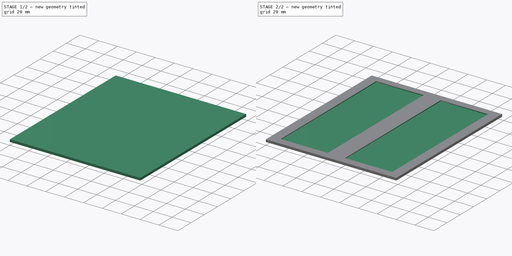
[diagram: build sequence overview — one tinted view per stage of 2, left to right]
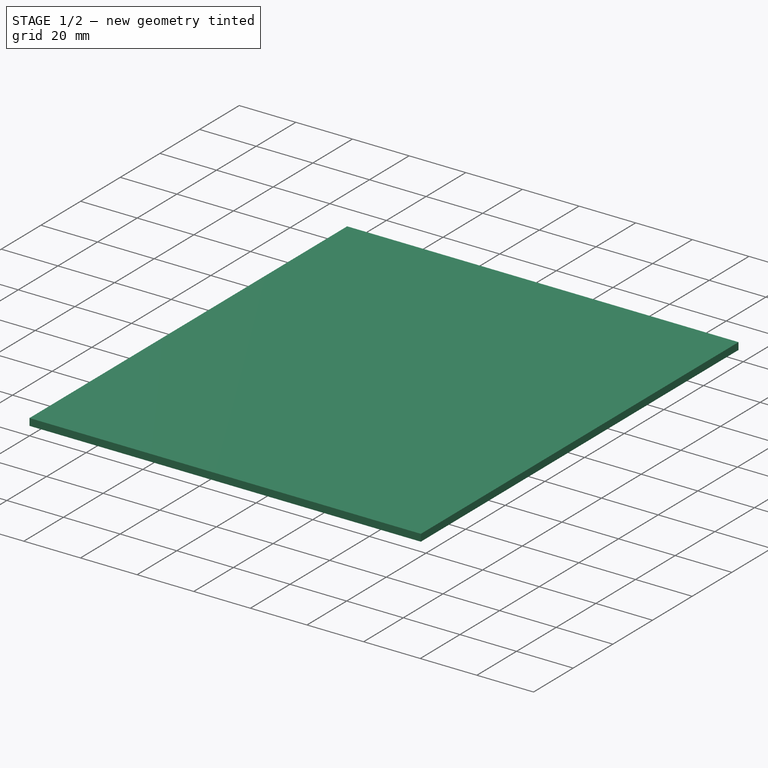
[diagram: stage 1 of 2 — iso view after this stage's code; geometry added in this stage tinted green]
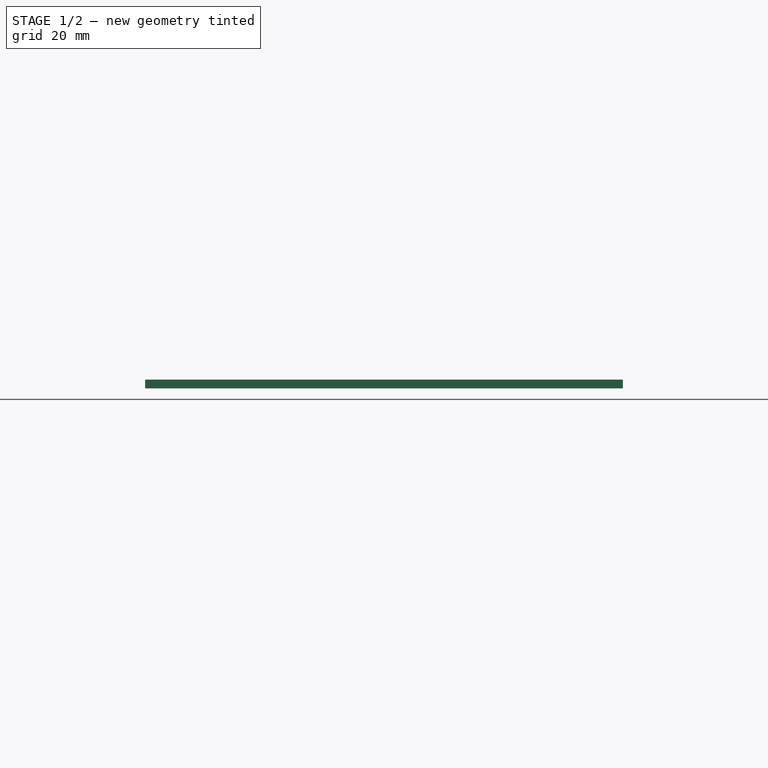
[diagram: stage 1 of 2 — front view after this stage's code; geometry added in this stage tinted green]
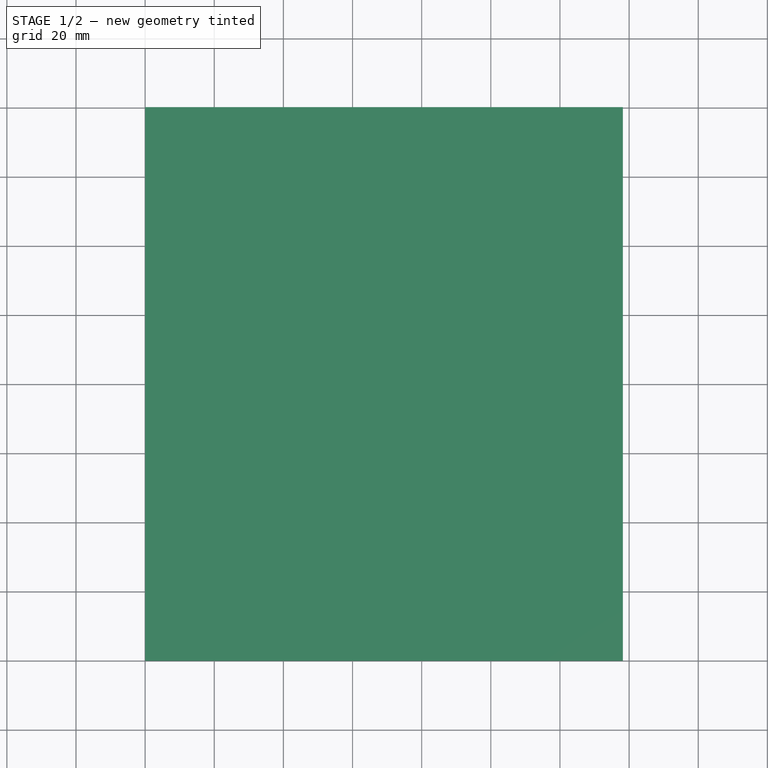
[diagram: stage 1 of 2 — top view after this stage's code; geometry added in this stage tinted green]
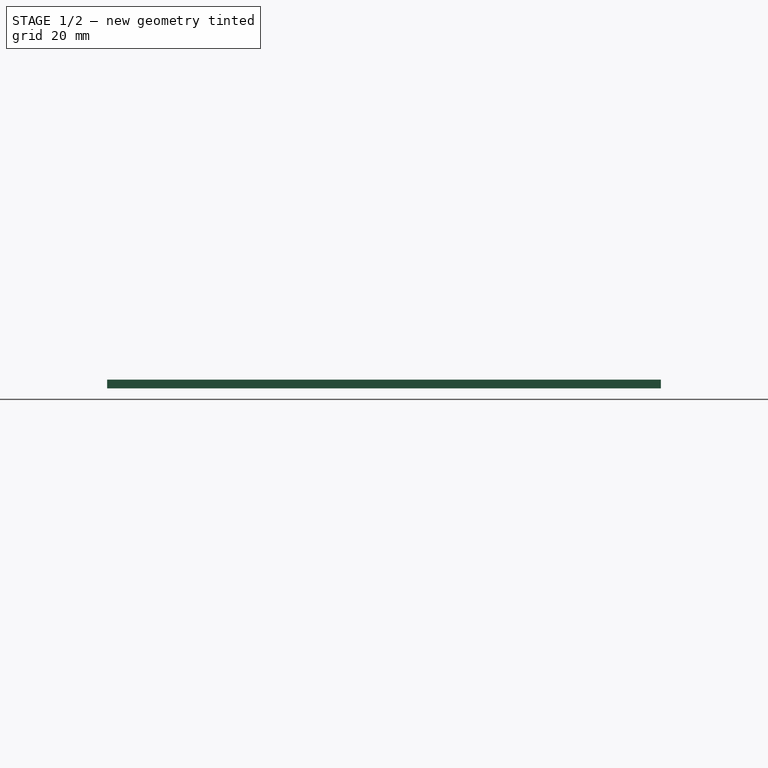
[diagram: stage 1 of 2 — right view after this stage's code; geometry added in this stage tinted green]
FCSTD DOCUMENT  (FreeCAD 0.14R3703 (Git))
Label: solar-panel
License: CC-BY 3.0
LicenseURL: http://creativecommons.org/licenses/by/3.0/
objects: Sketcher::SketchObject×2, PartDesign::Pad×1, PartDesign::Pocket×1, Part::Feature×1
note: 7 computed .brp shape members not serialized (recipe doc carries the construction recipe); baked Part::Feature solids carry a one-line shape summary decoded from their .brp

FEATURE [Sketcher::SketchObject] Sketch
  sketch-geometry (4):
    g0: LineSegment StartX=0 StartY=0 StartZ=0 EndX=138.2 EndY=0 EndZ=0
    g1: LineSegment StartX=138.2 StartY=0 StartZ=0 EndX=138.2 EndY=160.2 EndZ=0
    g2: LineSegment StartX=138.2 StartY=160.2 StartZ=0 EndX=0 EndY=160.2 EndZ=0
    g3: LineSegment StartX=0 StartY=160.2 StartZ=0 EndX=0 EndY=0 EndZ=0
  constraints (11):
    c: Coincident(g0,g1)
    c: Coincident(g1,g2)
    c: Coincident(g2,g3)
    c: Coincident(g3,g0)
    c: Horizontal(g0)
    c: Horizontal(g2)
    c: Vertical(g1)
    c: Vertical(g3)
    c: Coincident(g0,g-1)
    c: DistanceX(g2) = -138.2
    c: DistanceY(g1) = 160.2
FEATURE [PartDesign::Pad] Pad
  Length = 2.5
  Length2 = 100
  Sketch = -> Sketch
  Type = 0
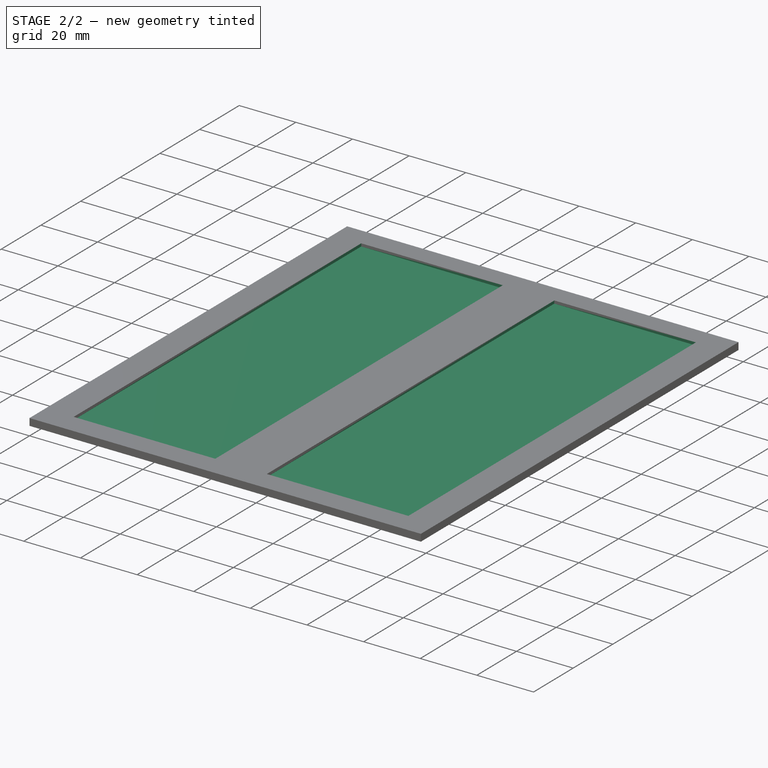
[diagram: stage 2 of 2 — iso view after this stage's code; geometry added in this stage tinted green]
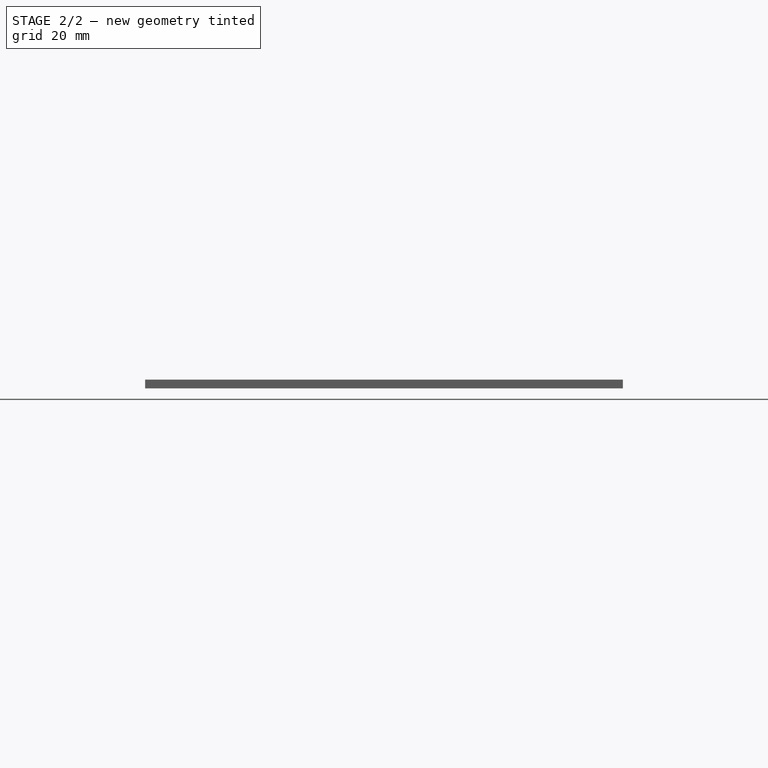
[diagram: stage 2 of 2 — front view after this stage's code; geometry added in this stage tinted green]
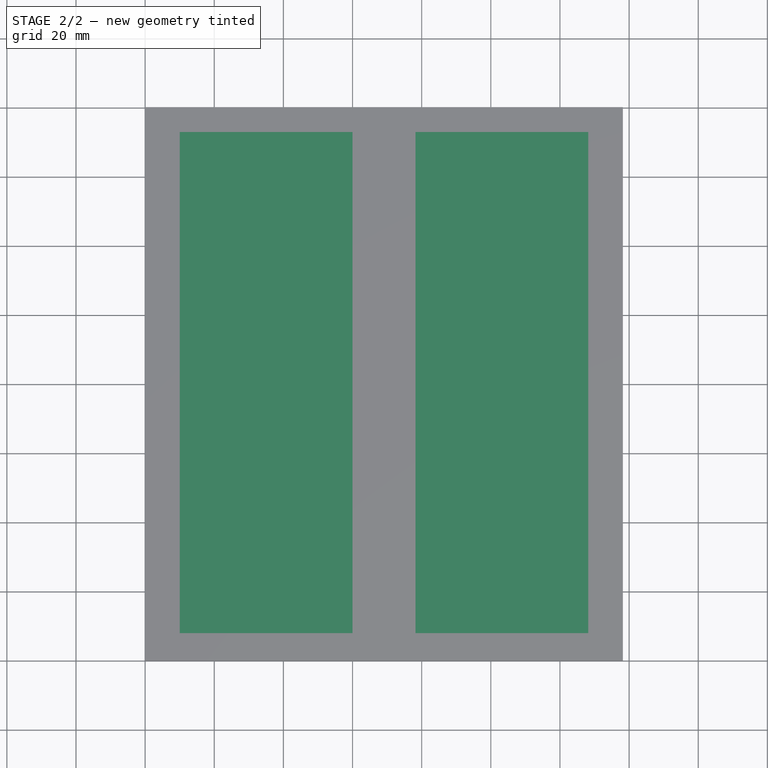
[diagram: stage 2 of 2 — top view after this stage's code; geometry added in this stage tinted green]
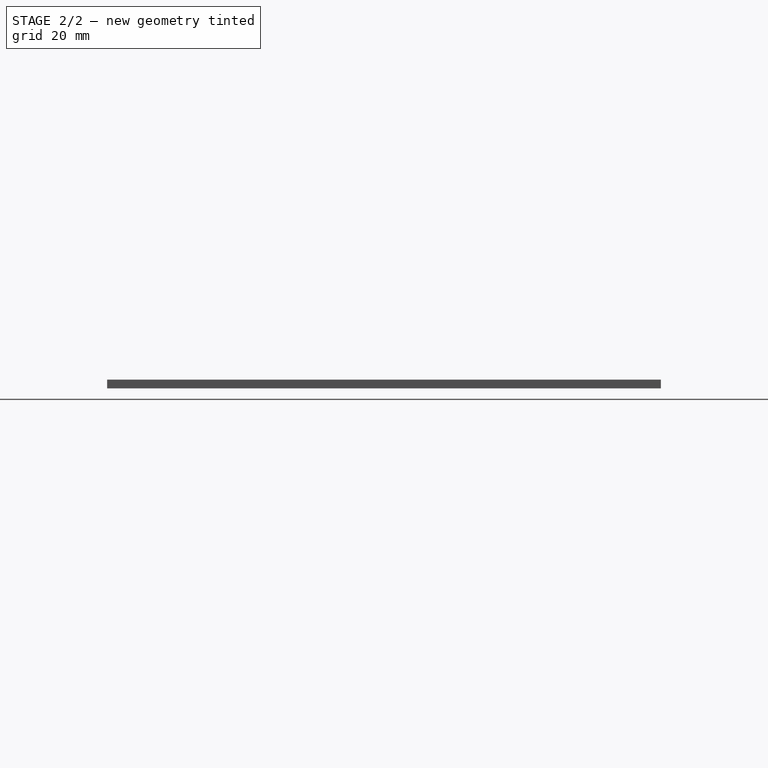
[diagram: stage 2 of 2 — right view after this stage's code; geometry added in this stage tinted green]
FEATURE [Sketcher::SketchObject] Sketch001
  ExternalGeometry = -> [Pad]
  Placement = pos=(0,0,2.5) rot=(0,0,1;0rad)
  Support = -> Pad [Face6]
  sketch-geometry (8):
    g0: LineSegment StartX=10 StartY=153 StartZ=0 EndX=60 EndY=153 EndZ=0
    g1: LineSegment StartX=60 StartY=153 StartZ=0 EndX=60 EndY=8 EndZ=0
    g2: LineSegment StartX=60 StartY=8 StartZ=0 EndX=10 EndY=8 EndZ=0
    g3: LineSegment StartX=10 StartY=8 StartZ=0 EndX=10 EndY=153 EndZ=0
    g4: LineSegment StartX=78.2 StartY=153 StartZ=0 EndX=128.2 EndY=153 EndZ=0
    g5: LineSegment StartX=128.2 StartY=153 StartZ=0 EndX=128.2 EndY=8 EndZ=0
    g6: LineSegment StartX=128.2 StartY=8 StartZ=0 EndX=78.2 EndY=8 EndZ=0
    g7: LineSegment StartX=78.2 StartY=8 StartZ=0 EndX=78.2 EndY=153 EndZ=0
  constraints (24):
    c: Coincident(g0,g1)
    c: Coincident(g1,g2)
    c: Coincident(g2,g3)
    c: Coincident(g3,g0)
    c: Horizontal(g0)
    c: Horizontal(g2)
    c: Vertical(g1)
    c: Vertical(g3)
    c: Coincident(g4,g5)
    c: Coincident(g5,g6)
    c: Coincident(g6,g7)
    c: Coincident(g7,g4)
    c: Horizontal(g4)
    c: Horizontal(g6)
    c: Vertical(g5)
    c: Vertical(g7)
    c: DistanceX(g-1,g2) = 10
    c: DistanceY(g-1,g2) = 8
    c: Distance(g4,g5) = 50
    c: DistanceY(g5) = -145
    c: DistanceY(g-1,g6) = 8
    c: DistanceX(g5,g-3) = 10
    c: DistanceX(g0) = 50
    c: DistanceY(g3) = 145
FEATURE [PartDesign::Pocket] Pocket
  Length = 1
  Sketch = -> Sketch001
  Type = 0
FEATURE [Part::Feature] Pocket001  label="Panel"
  shape: bbox 138.2 x 160.2 x 2.5 mm, 16 faces (baked)
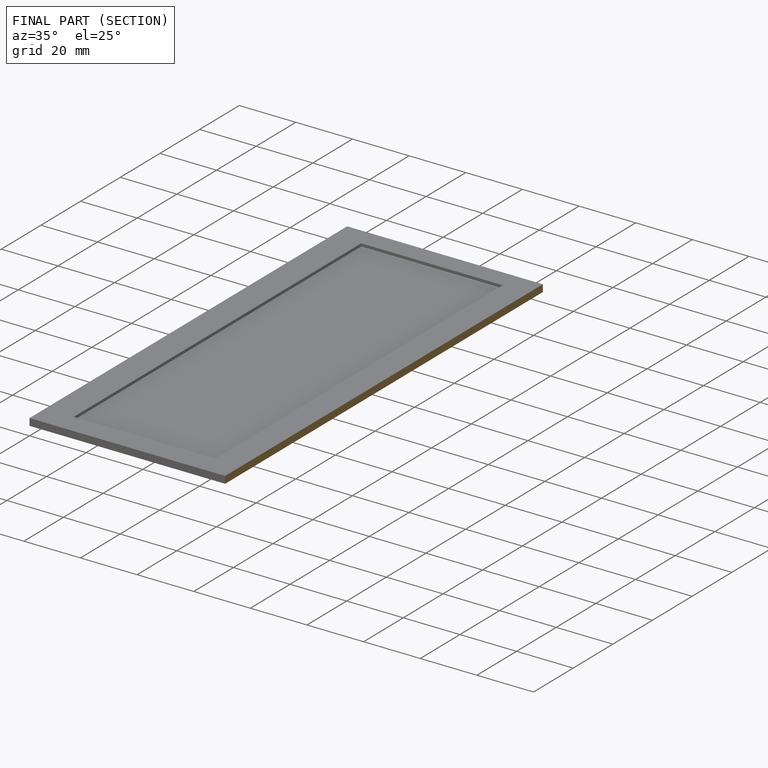
[diagram: finished part — half-section view (interior)]
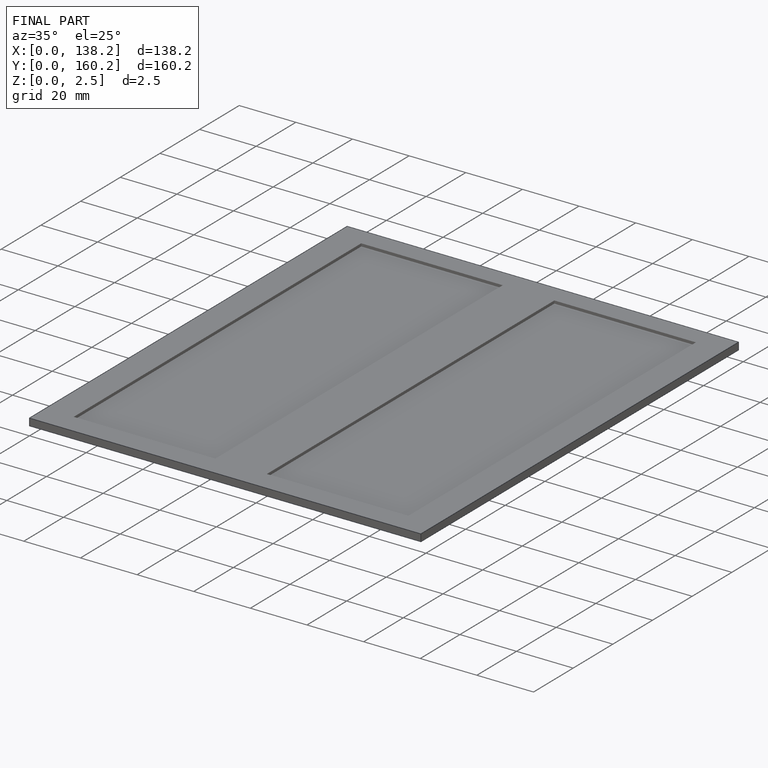
[diagram: finished part — iso view with bounding-box wireframe]
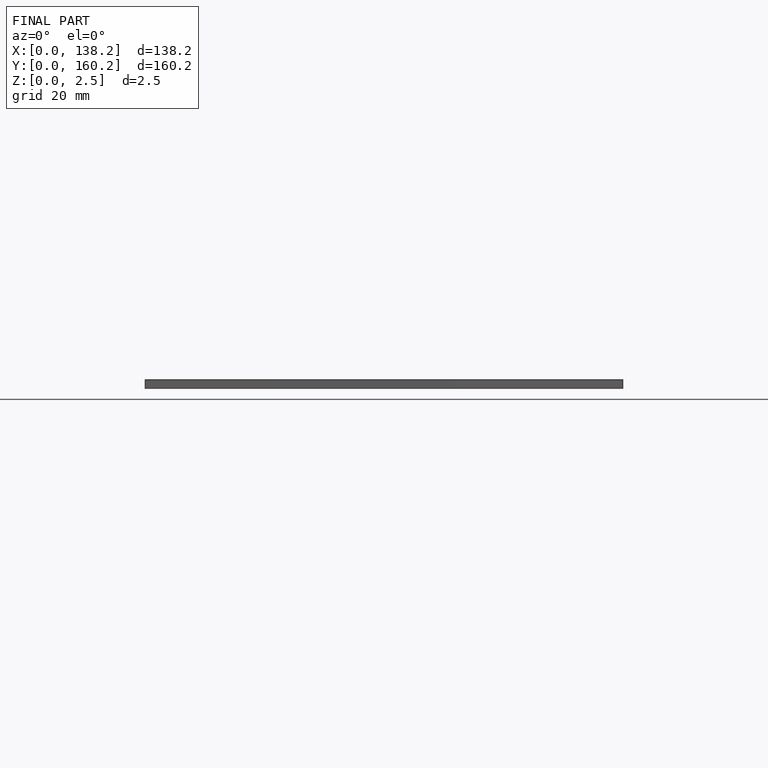
[diagram: finished part — front view with bounding-box wireframe]
